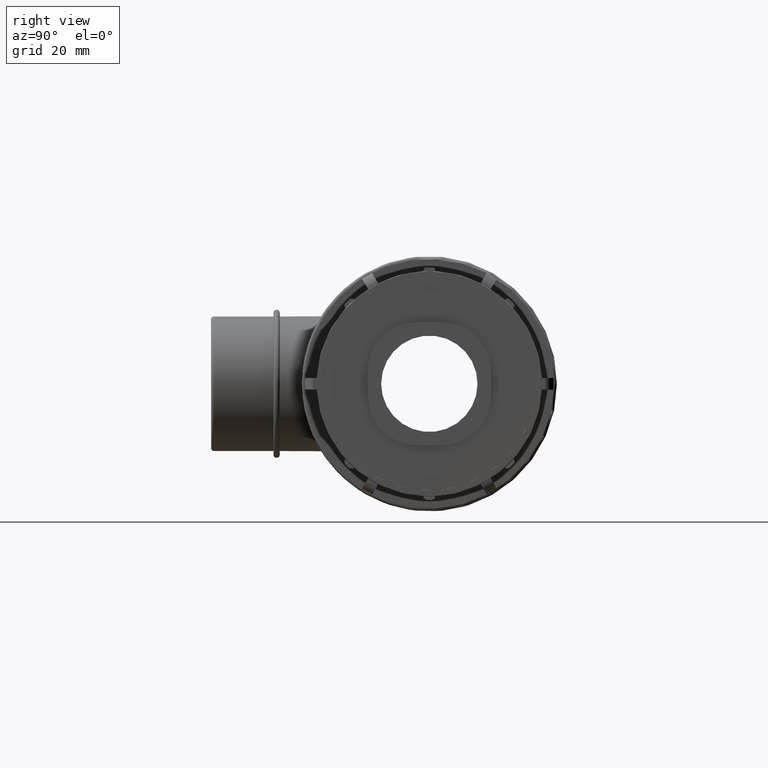
[diagram: clean part render]
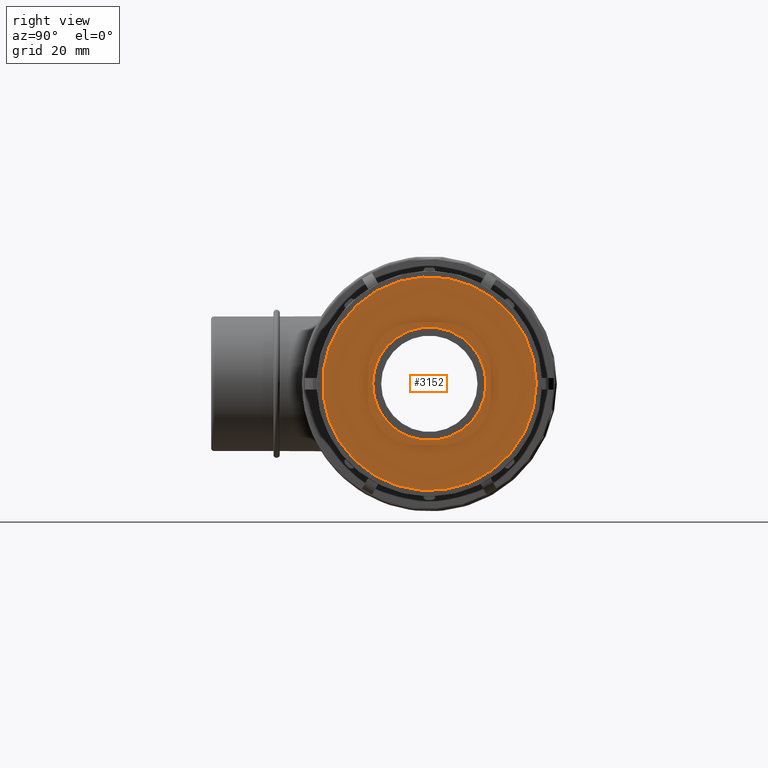
[diagram: same view with one face highlighted and labeled with its STEP entity id]
A machine part, right view. The second image highlights one B-rep face of the part: STEP entity #3152.
In plain terms, the highlighted planar face has unit normal (1, 0, 0).
Its self-contained STEP definition (entity closure, byte-faithful):
#466=PLANE('',#3511);
#680=CIRCLE('',#3510,37.72);
#681=CIRCLE('',#3512,20.);
#774=FACE_BOUND('',#1194,.T.);
#945=FACE_OUTER_BOUND('',#1193,.T.);
#1193=EDGE_LOOP('',(#2709));
#1194=EDGE_LOOP('',(#2710));
#1545=VERTEX_POINT('',#5908);
#1546=VERTEX_POINT('',#5911);
#1951=EDGE_CURVE('',#1545,#1545,#680,.T.);
#1952=EDGE_CURVE('',#1546,#1546,#681,.T.);
#2709=ORIENTED_EDGE('',*,*,#1951,.T.);
#2710=ORIENTED_EDGE('',*,*,#1952,.F.);
#3152=ADVANCED_FACE('',(#945,#774),#466,.T.);
#3510=AXIS2_PLACEMENT_3D('',#5909,#4282,#4283);
#3511=AXIS2_PLACEMENT_3D('',#5910,#4284,#4285);
#3512=AXIS2_PLACEMENT_3D('',#5912,#4286,#4287);
#4282=DIRECTION('center_axis',(1.,0.,0.));
#4283=DIRECTION('ref_axis',(0.,0.,-1.));
#4284=DIRECTION('center_axis',(1.,0.,0.));
#4285=DIRECTION('ref_axis',(0.,0.,-1.));
#4286=DIRECTION('center_axis',(1.,0.,0.));
#4287=DIRECTION('ref_axis',(0.,0.,-1.));
#5908=CARTESIAN_POINT('',(121.85,28.0822170987109,-25.1830792958461));
#5909=CARTESIAN_POINT('Origin',(121.85,0.,0.));
#5910=CARTESIAN_POINT('Origin',(121.85,20.,0.));
#5911=CARTESIAN_POINT('',(121.85,20.,0.));
#5912=CARTESIAN_POINT('Origin',(121.85,0.,0.));